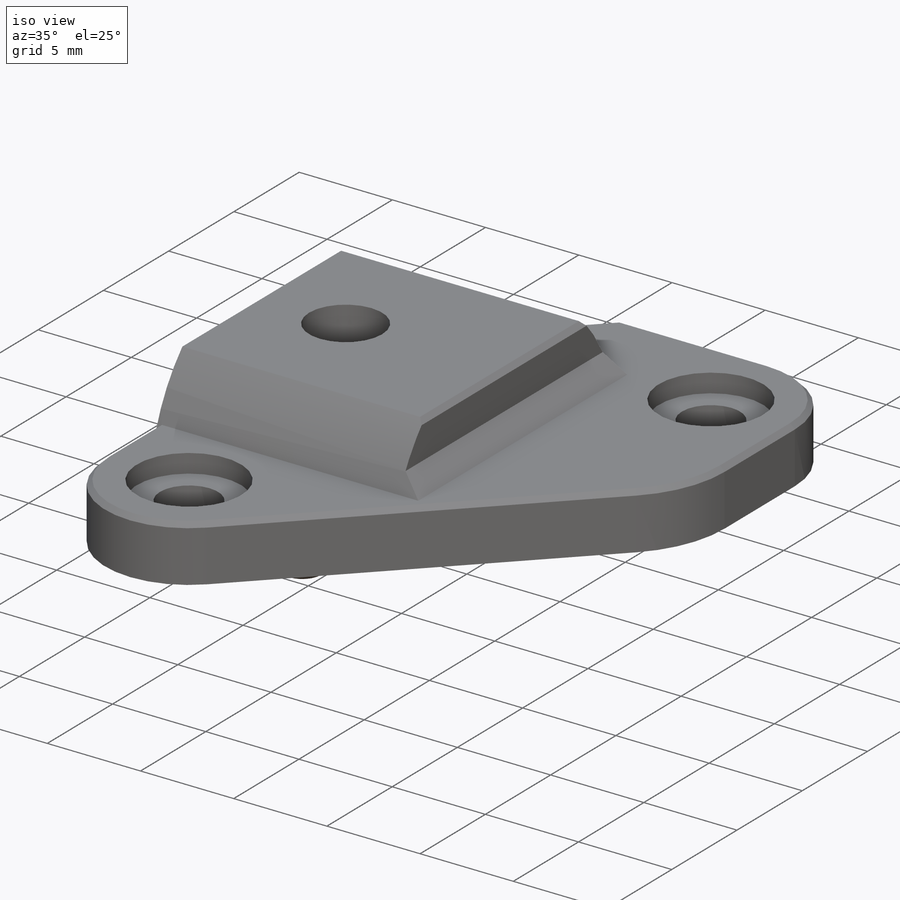
[diagram: iso view]
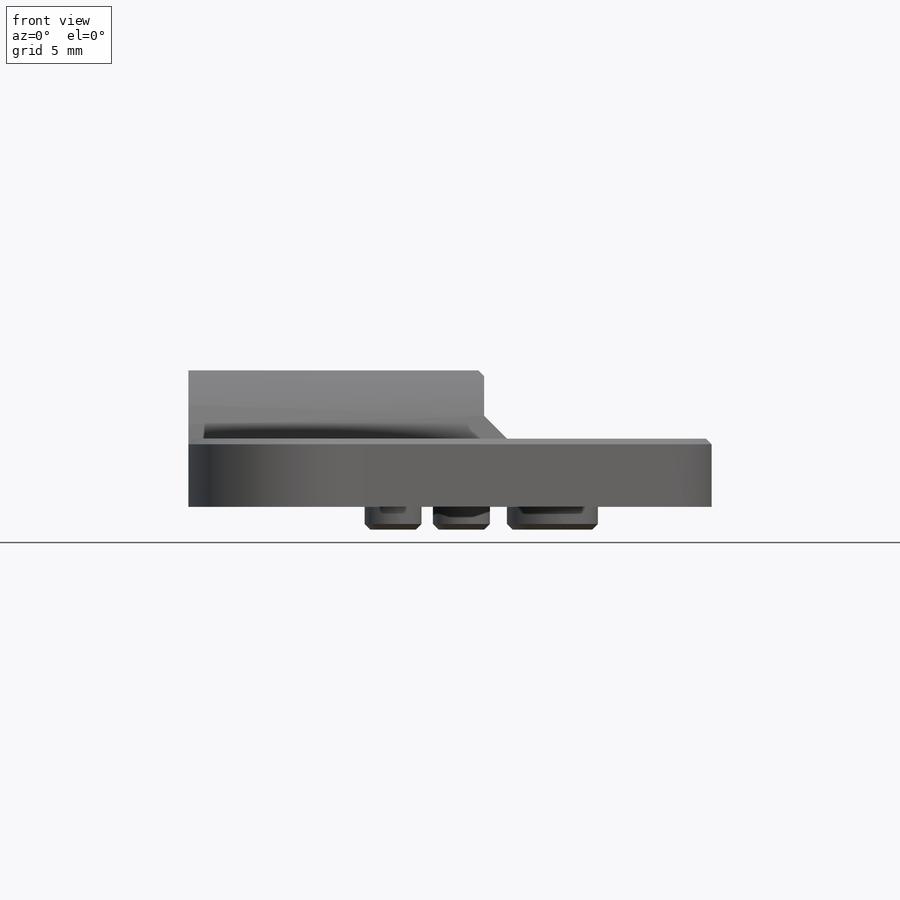
[diagram: front view]
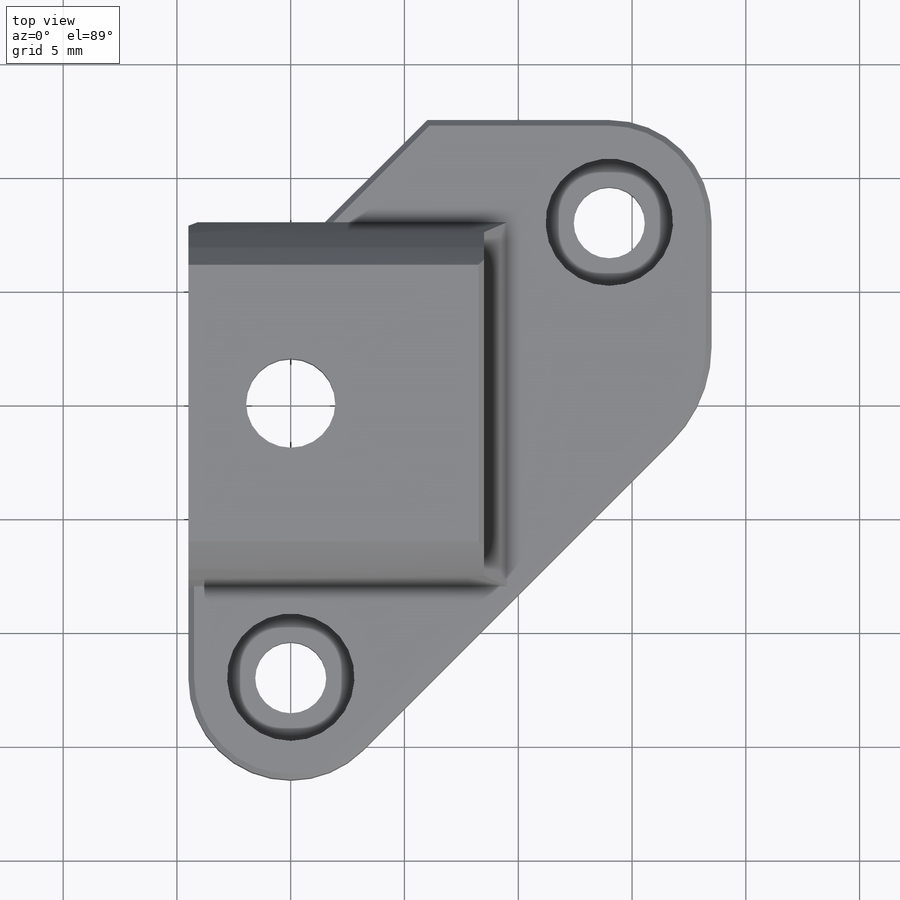
[diagram: top view]
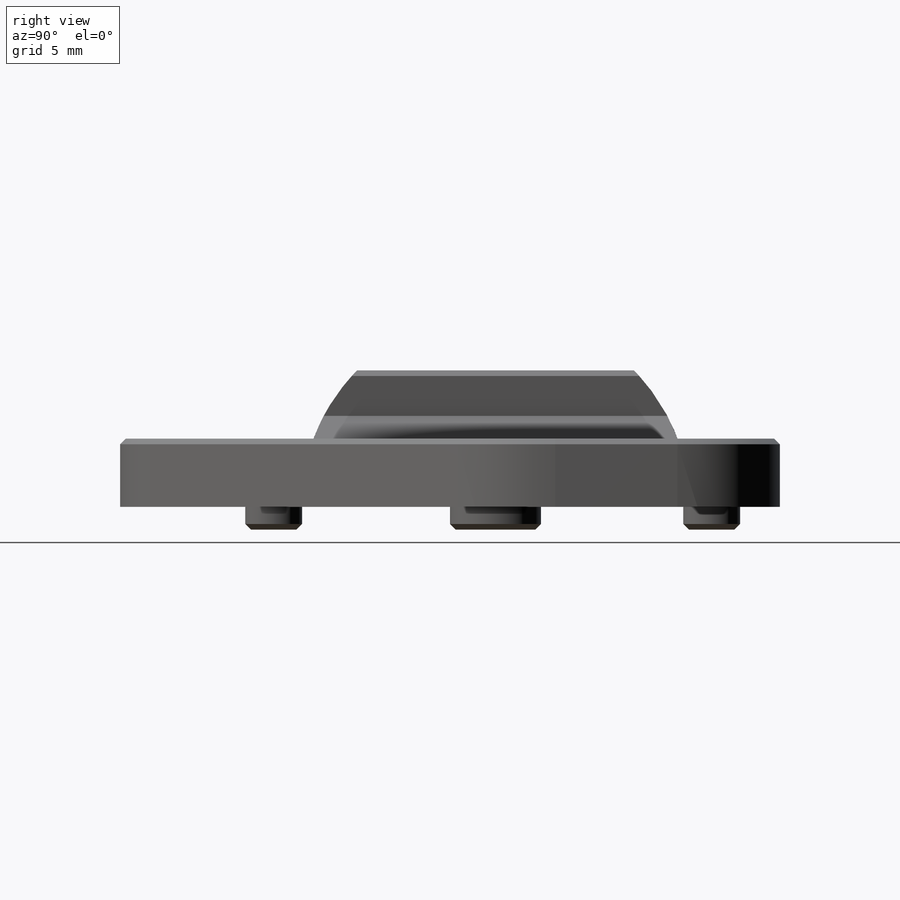
[diagram: right view]
SOLIDWORKS PART (.sldprt)
format: sldprt  version: not decoded by parser v0  size: 245,760 bytes
history: native  units: mm
features: sketch x6, chamfer x4, extrude x3, cut_extrude x3, material x1, fillet x1 (+16 scaffold rows collapsed)
feature tree (34):
  scaffold x16  (default folders/planes/origin — collapsed)
  material  "Material <not specified>"
  sketch  "Sketch1"  dims[D1=3.125mm D2=13.0mm D3=1.0mm D4=8.0mm D5=12.5mm D6=45.0deg D7=45.0deg D8=1.0mm D9=12.0mm D10=14.0mm D11=8.0mm]
  extrude  "Boss-Extrude1"  Depth=3mm
  sketch  "Sketch2"  dims[D1=16.0mm D2=6.0mm]
  extrude  "Boss-Extrude2"  Depth=13mm
  sketch  "Sketch3"  dims[D3=6.75mm D1=13.5mm D2=3.4mm]
  cut_extrude  "Cut-Extrude1"  Depth=11.5mm
  sketch  "Sketch4"  dims[D1=3.92mm]
  cut_extrude  "Cut-Extrude2"  [1 undecoded]
  chamfer  "Chamfer1"  Distance=1mm Angle=45deg
  fillet  "Fillet1"  Radius=6mm
  chamfer  "Chamfer2"  Distance=3.4mm Angle=45deg
  chamfer  "Chamfer3"  Distance=0.5mm Angle=45deg
  sketch  "Sketch5"  dims[D1=5.6mm]
  cut_extrude  "Cut-Extrude3"  Depth=1mm
  sketch  "Sketch6"  dims[c1.D1=2.5mm c1.D2=4.0mm c1.D3=11.5mm c1.D4=9.5mm c1.D5=~11.877979mm c2.D4=9.5mm c2.D5=9.75mm c3.D4=9.5mm c3.D6=7.5mm c3.D7=4.5mm]
  extrude  "Boss-Extrude3"  Depth=1mm
  chamfer  "Chamfer4"  Distance=0.25mm Angle=45deg
decode coverage: 16 of 17 modeling features carry decoded parameters
note: ~ marks probable driven/reference dimensions
note: 1 parameter value undecoded
note: suppression state not decoded; provenance and decode notes live in map.json
